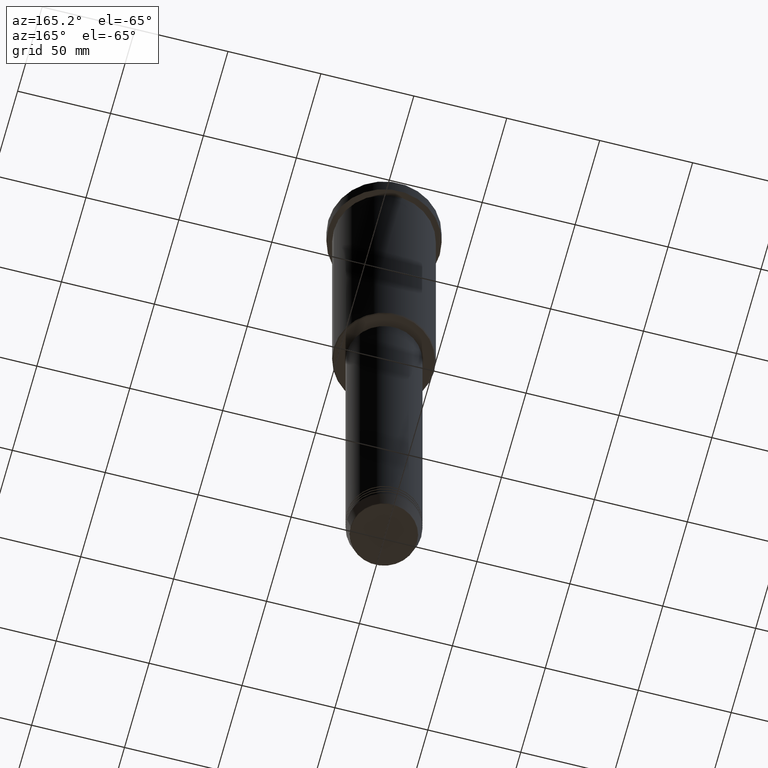
[diagram: clean part render]
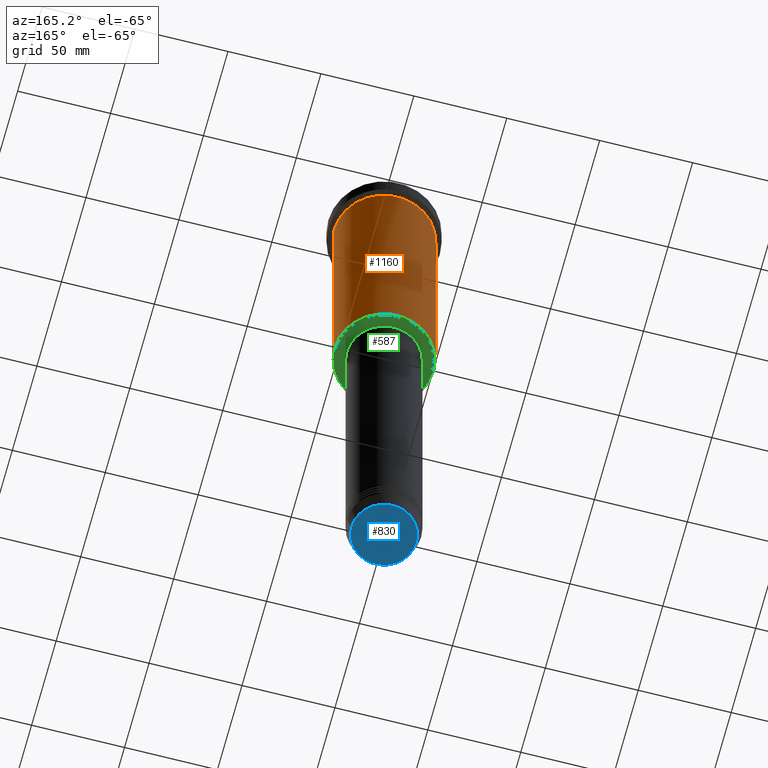
[diagram: same view with three faces highlighted in distinct colors, each labeled with its STEP entity id]
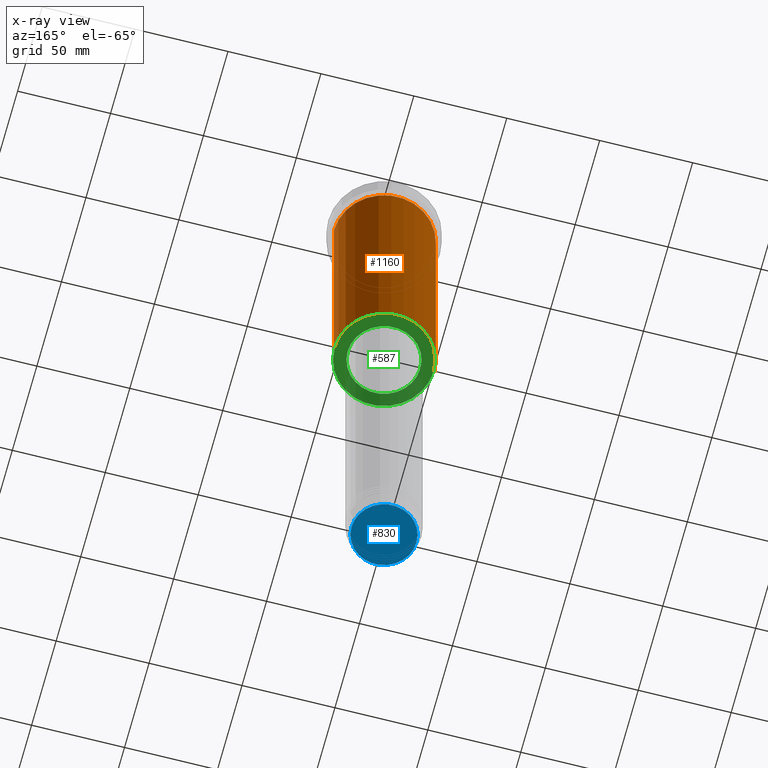
[diagram: x-ray of the same camera — body ghosted, the three highlighted faces saturated]
A machine part, auxiliary view with three faces highlighted in distinct colors.
The next image is the same camera in x-ray (body ghosted, the three faces saturated) — at least one of them is partly hidden behind the body in this view.
Their STEP definitions:

[orange] entity #1160 — the highlighted cylindrical surface (partial cylindrical patch) has radius 27 mm, axis along (-0, -0, 1).
#10 = CYLINDRICAL_SURFACE ( 'NONE', #742, 27.00000000000000355 ) ;
#35 = EDGE_CURVE ( 'NONE', #111, #642, #97, .T. ) ;
#49 = DIRECTION ( 'NONE',  ( -0.000000000000000000, -0.000000000000000000, 1.000000000000000000 ) ) ;
#71 = DIRECTION ( 'NONE',  ( 1.000000000000000000, 0.000000000000000000, 0.000000000000000000 ) ) ;
#97 = CIRCLE ( 'NONE', #757, 27.00000000000000355 ) ;
#104 = EDGE_CURVE ( 'NONE', #475, #590, #899, .T. ) ;
#108 = DIRECTION ( 'NONE',  ( -1.000000000000000000, 0.000000000000000000, 0.000000000000000000 ) ) ;
#111 = VERTEX_POINT ( 'NONE', #467 ) ;
#158 = CARTESIAN_POINT ( 'NONE',  ( 0.000000000000000000, 0.000000000000000000, -10.99999999999999289 ) ) ;
#241 = CARTESIAN_POINT ( 'NONE',  ( -27.00000000000000355, 3.306546357697854128E-15, -155.4999999999999432 ) ) ;
#361 = CARTESIAN_POINT ( 'NONE',  ( 0.000000000000000000, 0.000000000000000000, 0.000000000000000000 ) ) ;
#366 = DIRECTION ( 'NONE',  ( 1.000000000000000000, 0.000000000000000000, 0.000000000000000000 ) ) ;
#385 = EDGE_CURVE ( 'NONE', #590, #642, #982, .T. ) ;
#433 = AXIS2_PLACEMENT_3D ( 'NONE', #471, #952, #108 ) ;
#467 = CARTESIAN_POINT ( 'NONE',  ( 27.00000000000000355, 0.000000000000000000, -10.99999999999999289 ) ) ;
#471 = CARTESIAN_POINT ( 'NONE',  ( 0.000000000000000000, 0.000000000000000000, -155.4999999999999432 ) ) ;
#475 = VERTEX_POINT ( 'NONE', #599 ) ;
#480 = VECTOR ( 'NONE', #635, 1000.000000000000000 ) ;
#489 = ORIENTED_EDGE ( 'NONE', *, *, #385, .T. ) ;
#501 = EDGE_CURVE ( 'NONE', #475, #111, #1090, .T. ) ;
#560 = ORIENTED_EDGE ( 'NONE', *, *, #104, .T. ) ;
#590 = VERTEX_POINT ( 'NONE', #241 ) ;
#599 = CARTESIAN_POINT ( 'NONE',  ( 27.00000000000000355, 0.000000000000000000, -155.4999999999999432 ) ) ;
#635 = DIRECTION ( 'NONE',  ( -0.000000000000000000, -0.000000000000000000, 1.000000000000000000 ) ) ;
#642 = VERTEX_POINT ( 'NONE', #1052 ) ;
#685 = DIRECTION ( 'NONE',  ( -0.000000000000000000, -0.000000000000000000, 1.000000000000000000 ) ) ;
#693 = ORIENTED_EDGE ( 'NONE', *, *, #35, .F. ) ;
#742 = AXIS2_PLACEMENT_3D ( 'NONE', #361, #813, #366 ) ;
#757 = AXIS2_PLACEMENT_3D ( 'NONE', #158, #49, #71 ) ;
#772 = CARTESIAN_POINT ( 'NONE',  ( -27.00000000000000355, 3.306546357697854128E-15, 0.000000000000000000 ) ) ;
#813 = DIRECTION ( 'NONE',  ( -0.000000000000000000, -0.000000000000000000, 1.000000000000000000 ) ) ;
#899 = CIRCLE ( 'NONE', #433, 27.00000000000000355 ) ;
#903 = CARTESIAN_POINT ( 'NONE',  ( 27.00000000000000355, 0.000000000000000000, 0.000000000000000000 ) ) ;
#919 = FACE_OUTER_BOUND ( 'NONE', #972, .T. ) ;
#946 = VECTOR ( 'NONE', #685, 1000.000000000000000 ) ;
#952 = DIRECTION ( 'NONE',  ( -0.000000000000000000, -0.000000000000000000, 1.000000000000000000 ) ) ;
#965 = ORIENTED_EDGE ( 'NONE', *, *, #501, .F. ) ;
#972 = EDGE_LOOP ( 'NONE', ( #560, #489, #693, #965 ) ) ;
#982 = LINE ( 'NONE', #772, #946 ) ;
#1052 = CARTESIAN_POINT ( 'NONE',  ( -27.00000000000000355, 3.306546357697854128E-15, -10.99999999999999289 ) ) ;
#1090 = LINE ( 'NONE', #903, #480 ) ;
#1160 = ADVANCED_FACE ( 'NONE', ( #919 ), #10, .T. ) ;

[blue] entity #830 — the highlighted planar face has unit normal (0, -0, 1).
#3 = FACE_OUTER_BOUND ( 'NONE', #264, .T. ) ;
#110 = CARTESIAN_POINT ( 'NONE',  ( 0.000000000000000000, 0.000000000000000000, -370.9999999999999432 ) ) ;
#143 = DIRECTION ( 'NONE',  ( 0.000000000000000000, 0.000000000000000000, -1.000000000000000000 ) ) ;
#263 = DIRECTION ( 'NONE',  ( 1.000000000000000000, 0.000000000000000000, 0.000000000000000000 ) ) ;
#264 = EDGE_LOOP ( 'NONE', ( #293, #510 ) ) ;
#293 = ORIENTED_EDGE ( 'NONE', *, *, #337, .T. ) ;
#337 = EDGE_CURVE ( 'NONE', #667, #1000, #1030, .T. ) ;
#373 = CARTESIAN_POINT ( 'NONE',  ( 0.000000000000000000, 0.000000000000000000, -370.9999999999999432 ) ) ;
#421 = EDGE_CURVE ( 'NONE', #1000, #667, #720, .T. ) ;
#449 = AXIS2_PLACEMENT_3D ( 'NONE', #703, #143, #504 ) ;
#500 = CARTESIAN_POINT ( 'NONE',  ( 17.47274296656153680, 0.000000000000000000, -370.9999999999999432 ) ) ;
#504 = DIRECTION ( 'NONE',  ( 1.000000000000000000, 0.000000000000000000, 0.000000000000000000 ) ) ;
#510 = ORIENTED_EDGE ( 'NONE', *, *, #421, .T. ) ;
#644 = DIRECTION ( 'NONE',  ( 0.000000000000000000, 0.000000000000000000, -1.000000000000000000 ) ) ;
#667 = VERTEX_POINT ( 'NONE', #500 ) ;
#677 = CARTESIAN_POINT ( 'NONE',  ( -17.47274296656153680, 2.169366823916867320E-15, -370.9999999999999432 ) ) ;
#703 = CARTESIAN_POINT ( 'NONE',  ( 0.000000000000000000, 0.000000000000000000, -370.9999999999999432 ) ) ;
#720 = CIRCLE ( 'NONE', #449, 17.47274296656153680 ) ;
#735 = AXIS2_PLACEMENT_3D ( 'NONE', #373, #644, #1179 ) ;
#801 = DIRECTION ( 'NONE',  ( 0.000000000000000000, -0.000000000000000000, 1.000000000000000000 ) ) ;
#830 = ADVANCED_FACE ( 'NONE', ( #3 ), #1070, .F. ) ;
#947 = AXIS2_PLACEMENT_3D ( 'NONE', #110, #801, #263 ) ;
#1000 = VERTEX_POINT ( 'NONE', #677 ) ;
#1030 = CIRCLE ( 'NONE', #735, 17.47274296656153680 ) ;
#1070 = PLANE ( 'NONE',  #947 ) ;
#1179 = DIRECTION ( 'NONE',  ( 1.000000000000000000, 0.000000000000000000, 0.000000000000000000 ) ) ;

[green] entity #587 — the highlighted planar face has unit normal (0, 0, -1).
#12 = EDGE_CURVE ( 'NONE', #701, #183, #189, .T. ) ;
#73 = CARTESIAN_POINT ( 'NONE',  ( 0.000000000000000000, 0.000000000000000000, -155.9999999999999432 ) ) ;
#77 = CIRCLE ( 'NONE', #228, 26.49999999999999645 ) ;
#105 = ORIENTED_EDGE ( 'NONE', *, *, #12, .T. ) ;
#183 = VERTEX_POINT ( 'NONE', #514 ) ;
#189 = CIRCLE ( 'NONE', #734, 26.49999999999999645 ) ;
#191 = DIRECTION ( 'NONE',  ( 0.000000000000000000, 0.000000000000000000, -1.000000000000000000 ) ) ;
#216 = VERTEX_POINT ( 'NONE', #585 ) ;
#228 = AXIS2_PLACEMENT_3D ( 'NONE', #803, #191, #540 ) ;
#234 = EDGE_LOOP ( 'NONE', ( #763, #105 ) ) ;
#235 = DIRECTION ( 'NONE',  ( -1.000000000000000000, 0.000000000000000000, -0.000000000000000000 ) ) ;
#253 = PLANE ( 'NONE',  #872 ) ;
#258 = CIRCLE ( 'NONE', #446, 19.50000000000000000 ) ;
#286 = EDGE_LOOP ( 'NONE', ( #835, #669 ) ) ;
#310 = CARTESIAN_POINT ( 'NONE',  ( -19.50000000000000000, 2.388061258337338939E-15, -155.9999999999999432 ) ) ;
#432 = DIRECTION ( 'NONE',  ( -0.000000000000000000, -0.000000000000000000, 1.000000000000000000 ) ) ;
#446 = AXIS2_PLACEMENT_3D ( 'NONE', #73, #432, #867 ) ;
#448 = DIRECTION ( 'NONE',  ( 1.000000000000000000, 0.000000000000000000, 0.000000000000000000 ) ) ;
#514 = CARTESIAN_POINT ( 'NONE',  ( 26.49999999999999645, 0.000000000000000000, -155.9999999999999716 ) ) ;
#526 = EDGE_CURVE ( 'NONE', #183, #701, #77, .T. ) ;
#540 = DIRECTION ( 'NONE',  ( -1.000000000000000000, 0.000000000000000000, 0.000000000000000000 ) ) ;
#548 = CARTESIAN_POINT ( 'NONE',  ( 0.000000000000000000, 0.000000000000000000, -155.9999999999999716 ) ) ;
#549 = DIRECTION ( 'NONE',  ( -0.000000000000000000, -0.000000000000000000, 1.000000000000000000 ) ) ;
#585 = CARTESIAN_POINT ( 'NONE',  ( 19.50000000000000000, 0.000000000000000000, -155.9999999999999432 ) ) ;
#587 = ADVANCED_FACE ( 'NONE', ( #1155, #1156 ), #253, .T. ) ;
#595 = CARTESIAN_POINT ( 'NONE',  ( 0.000000000000000000, 27.00000000000000355, -155.9999999999999716 ) ) ;
#629 = CARTESIAN_POINT ( 'NONE',  ( 0.000000000000000000, 0.000000000000000000, -155.9999999999999432 ) ) ;
#654 = VERTEX_POINT ( 'NONE', #310 ) ;
#669 = ORIENTED_EDGE ( 'NONE', *, *, #1089, .T. ) ;
#692 = CARTESIAN_POINT ( 'NONE',  ( -26.49999999999999645, 3.275930187719169552E-15, -155.9999999999999716 ) ) ;
#701 = VERTEX_POINT ( 'NONE', #692 ) ;
#734 = AXIS2_PLACEMENT_3D ( 'NONE', #548, #925, #1028 ) ;
#763 = ORIENTED_EDGE ( 'NONE', *, *, #526, .T. ) ;
#769 = EDGE_CURVE ( 'NONE', #216, #654, #1015, .T. ) ;
#803 = CARTESIAN_POINT ( 'NONE',  ( 0.000000000000000000, 0.000000000000000000, -155.9999999999999716 ) ) ;
#835 = ORIENTED_EDGE ( 'NONE', *, *, #769, .T. ) ;
#867 = DIRECTION ( 'NONE',  ( 1.000000000000000000, 0.000000000000000000, 0.000000000000000000 ) ) ;
#872 = AXIS2_PLACEMENT_3D ( 'NONE', #595, #1129, #235 ) ;
#925 = DIRECTION ( 'NONE',  ( 0.000000000000000000, 0.000000000000000000, -1.000000000000000000 ) ) ;
#1015 = CIRCLE ( 'NONE', #1138, 19.50000000000000000 ) ;
#1028 = DIRECTION ( 'NONE',  ( -1.000000000000000000, 0.000000000000000000, 0.000000000000000000 ) ) ;
#1089 = EDGE_CURVE ( 'NONE', #654, #216, #258, .T. ) ;
#1129 = DIRECTION ( 'NONE',  ( 0.000000000000000000, 0.000000000000000000, -1.000000000000000000 ) ) ;
#1138 = AXIS2_PLACEMENT_3D ( 'NONE', #629, #549, #448 ) ;
#1155 = FACE_OUTER_BOUND ( 'NONE', #234, .T. ) ;
#1156 = FACE_BOUND ( 'NONE', #286, .T. ) ;